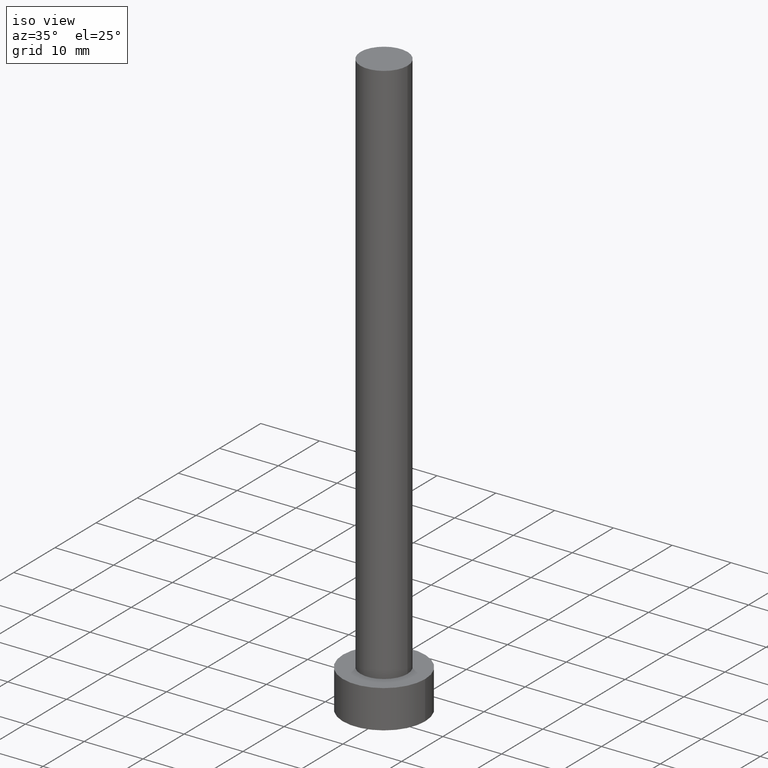
[diagram: clean part render]
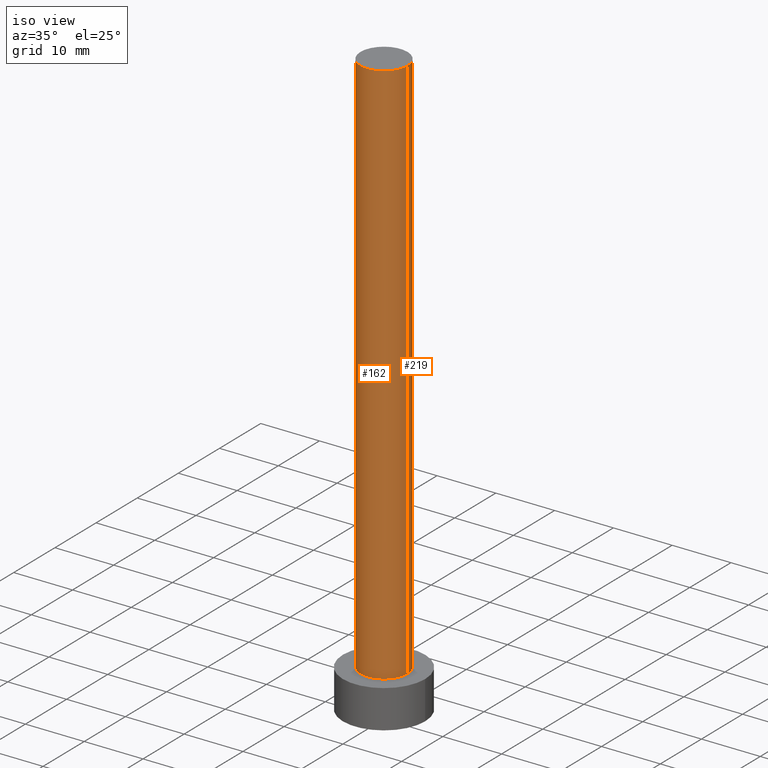
[diagram: same view with one multi-face feature highlighted, each face labeled with its STEP entity id]
A machine part, iso view. The highlighted faces form ONE feature: a constant-radius fillet chain: 2 tangent blend faces with common blend radius 4 mm. The faces share edges in the B-rep.
Their STEP definitions:
[1] entity #219 (Cylinder):
#9 = DIRECTION ( 'NONE',  ( -0.000000000000000000, -0.000000000000000000, -1.000000000000000000 ) ) ;
#10 = ORIENTED_EDGE ( 'NONE', *, *, #61, .F. ) ;
#15 = CARTESIAN_POINT ( 'NONE',  ( 0.000000000000000000, 0.000000000000000000, 100.0000000000000000 ) ) ;
#19 = CARTESIAN_POINT ( 'NONE',  ( 4.000000000000000000, 4.898587196589412829E-16, 100.0000000000000000 ) ) ;
#22 = VECTOR ( 'NONE', #115, 1000.000000000000000 ) ;
#27 = CIRCLE ( 'NONE', #175, 4.000000000000000000 ) ;
#28 = CARTESIAN_POINT ( 'NONE',  ( -4.000000000000000000, 0.000000000000000000, 100.0000000000000000 ) ) ;
#39 = VECTOR ( 'NONE', #9, 1000.000000000000000 ) ;
#40 = DIRECTION ( 'NONE',  ( 0.000000000000000000, 0.000000000000000000, 1.000000000000000000 ) ) ;
#43 = VERTEX_POINT ( 'NONE', #161 ) ;
#46 = EDGE_CURVE ( 'NONE', #89, #43, #248, .T. ) ;
#47 = ORIENTED_EDGE ( 'NONE', *, *, #46, .F. ) ;
#51 = DIRECTION ( 'NONE',  ( 0.000000000000000000, 0.000000000000000000, 1.000000000000000000 ) ) ;
#61 = EDGE_CURVE ( 'NONE', #153, #89, #247, .T. ) ;
#66 = DIRECTION ( 'NONE',  ( 1.000000000000000000, 0.000000000000000000, 0.000000000000000000 ) ) ;
#73 = EDGE_CURVE ( 'NONE', #136, #43, #27, .T. ) ;
#75 = CARTESIAN_POINT ( 'NONE',  ( 0.000000000000000000, 0.000000000000000000, 100.0000000000000000 ) ) ;
#79 = CYLINDRICAL_SURFACE ( 'NONE', #183, 4.000000000000000000 ) ;
#80 = ORIENTED_EDGE ( 'NONE', *, *, #73, .T. ) ;
#82 = DIRECTION ( 'NONE',  ( -1.000000000000000000, 0.000000000000000000, 0.000000000000000000 ) ) ;
#89 = VERTEX_POINT ( 'NONE', #28 ) ;
#115 = DIRECTION ( 'NONE',  ( -0.000000000000000000, -0.000000000000000000, -1.000000000000000000 ) ) ;
#123 = CARTESIAN_POINT ( 'NONE',  ( 0.000000000000000000, 0.000000000000000000, 6.500000000000000000 ) ) ;
#125 = ORIENTED_EDGE ( 'NONE', *, *, #145, .T. ) ;
#136 = VERTEX_POINT ( 'NONE', #211 ) ;
#145 = EDGE_CURVE ( 'NONE', #153, #136, #164, .T. ) ;
#153 = VERTEX_POINT ( 'NONE', #200 ) ;
#161 = CARTESIAN_POINT ( 'NONE',  ( -4.000000000000000000, 0.000000000000000000, 6.500000000000000000 ) ) ;
#164 = LINE ( 'NONE', #19, #22 ) ;
#175 = AXIS2_PLACEMENT_3D ( 'NONE', #123, #40, #66 ) ;
#183 = AXIS2_PLACEMENT_3D ( 'NONE', #15, #214, #82 ) ;
#193 = CARTESIAN_POINT ( 'NONE',  ( -4.000000000000000000, 0.000000000000000000, 100.0000000000000000 ) ) ;
#195 = DIRECTION ( 'NONE',  ( 1.000000000000000000, 0.000000000000000000, 0.000000000000000000 ) ) ;
#200 = CARTESIAN_POINT ( 'NONE',  ( 4.000000000000000000, 4.898587196589412829E-16, 100.0000000000000000 ) ) ;
#211 = CARTESIAN_POINT ( 'NONE',  ( 4.000000000000000000, 4.898587196589412829E-16, 6.500000000000000000 ) ) ;
#214 = DIRECTION ( 'NONE',  ( -0.000000000000000000, -0.000000000000000000, -1.000000000000000000 ) ) ;
#216 = AXIS2_PLACEMENT_3D ( 'NONE', #75, #51, #195 ) ;
#219 = ADVANCED_FACE ( 'NONE', ( #237 ), #79, .T. ) ;
#228 = EDGE_LOOP ( 'NONE', ( #10, #125, #80, #47 ) ) ;
#237 = FACE_OUTER_BOUND ( 'NONE', #228, .T. ) ;
#247 = CIRCLE ( 'NONE', #216, 4.000000000000000000 ) ;
#248 = LINE ( 'NONE', #193, #39 ) ;
[2] entity #162 (Cylinder):
#6 = ORIENTED_EDGE ( 'NONE', *, *, #198, .T. ) ;
#9 = DIRECTION ( 'NONE',  ( -0.000000000000000000, -0.000000000000000000, -1.000000000000000000 ) ) ;
#19 = CARTESIAN_POINT ( 'NONE',  ( 4.000000000000000000, 4.898587196589412829E-16, 100.0000000000000000 ) ) ;
#22 = VECTOR ( 'NONE', #115, 1000.000000000000000 ) ;
#28 = CARTESIAN_POINT ( 'NONE',  ( -4.000000000000000000, 0.000000000000000000, 100.0000000000000000 ) ) ;
#33 = FACE_OUTER_BOUND ( 'NONE', #173, .T. ) ;
#39 = VECTOR ( 'NONE', #9, 1000.000000000000000 ) ;
#43 = VERTEX_POINT ( 'NONE', #161 ) ;
#44 = ORIENTED_EDGE ( 'NONE', *, *, #46, .T. ) ;
#46 = EDGE_CURVE ( 'NONE', #89, #43, #248, .T. ) ;
#55 = DIRECTION ( 'NONE',  ( 1.000000000000000000, 0.000000000000000000, 0.000000000000000000 ) ) ;
#68 = AXIS2_PLACEMENT_3D ( 'NONE', #78, #255, #55 ) ;
#78 = CARTESIAN_POINT ( 'NONE',  ( 0.000000000000000000, 0.000000000000000000, 6.500000000000000000 ) ) ;
#89 = VERTEX_POINT ( 'NONE', #28 ) ;
#91 = DIRECTION ( 'NONE',  ( 1.000000000000000000, 0.000000000000000000, 0.000000000000000000 ) ) ;
#97 = CYLINDRICAL_SURFACE ( 'NONE', #189, 4.000000000000000000 ) ;
#98 = EDGE_CURVE ( 'NONE', #89, #153, #124, .T. ) ;
#112 = CARTESIAN_POINT ( 'NONE',  ( 0.000000000000000000, 0.000000000000000000, 100.0000000000000000 ) ) ;
#114 = ORIENTED_EDGE ( 'NONE', *, *, #98, .F. ) ;
#115 = DIRECTION ( 'NONE',  ( -0.000000000000000000, -0.000000000000000000, -1.000000000000000000 ) ) ;
#124 = CIRCLE ( 'NONE', #132, 4.000000000000000000 ) ;
#128 = CARTESIAN_POINT ( 'NONE',  ( 0.000000000000000000, 0.000000000000000000, 100.0000000000000000 ) ) ;
#132 = AXIS2_PLACEMENT_3D ( 'NONE', #128, #210, #91 ) ;
#136 = VERTEX_POINT ( 'NONE', #211 ) ;
#145 = EDGE_CURVE ( 'NONE', #153, #136, #164, .T. ) ;
#150 = CIRCLE ( 'NONE', #68, 4.000000000000000000 ) ;
#153 = VERTEX_POINT ( 'NONE', #200 ) ;
#157 = ORIENTED_EDGE ( 'NONE', *, *, #145, .F. ) ;
#161 = CARTESIAN_POINT ( 'NONE',  ( -4.000000000000000000, 0.000000000000000000, 6.500000000000000000 ) ) ;
#162 = ADVANCED_FACE ( 'NONE', ( #33 ), #97, .T. ) ;
#164 = LINE ( 'NONE', #19, #22 ) ;
#173 = EDGE_LOOP ( 'NONE', ( #157, #114, #44, #6 ) ) ;
#182 = DIRECTION ( 'NONE',  ( -1.000000000000000000, 0.000000000000000000, 0.000000000000000000 ) ) ;
#184 = DIRECTION ( 'NONE',  ( -0.000000000000000000, -0.000000000000000000, -1.000000000000000000 ) ) ;
#189 = AXIS2_PLACEMENT_3D ( 'NONE', #112, #184, #182 ) ;
#193 = CARTESIAN_POINT ( 'NONE',  ( -4.000000000000000000, 0.000000000000000000, 100.0000000000000000 ) ) ;
#198 = EDGE_CURVE ( 'NONE', #43, #136, #150, .T. ) ;
#200 = CARTESIAN_POINT ( 'NONE',  ( 4.000000000000000000, 4.898587196589412829E-16, 100.0000000000000000 ) ) ;
#210 = DIRECTION ( 'NONE',  ( 0.000000000000000000, 0.000000000000000000, 1.000000000000000000 ) ) ;
#211 = CARTESIAN_POINT ( 'NONE',  ( 4.000000000000000000, 4.898587196589412829E-16, 6.500000000000000000 ) ) ;
#248 = LINE ( 'NONE', #193, #39 ) ;
#255 = DIRECTION ( 'NONE',  ( 0.000000000000000000, 0.000000000000000000, 1.000000000000000000 ) ) ;